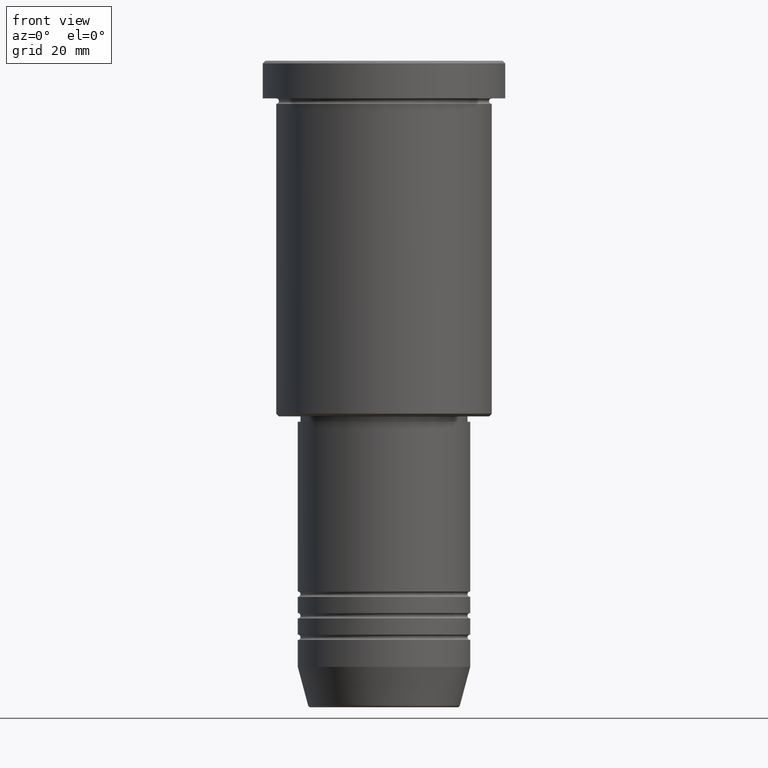
[diagram: clean part render]
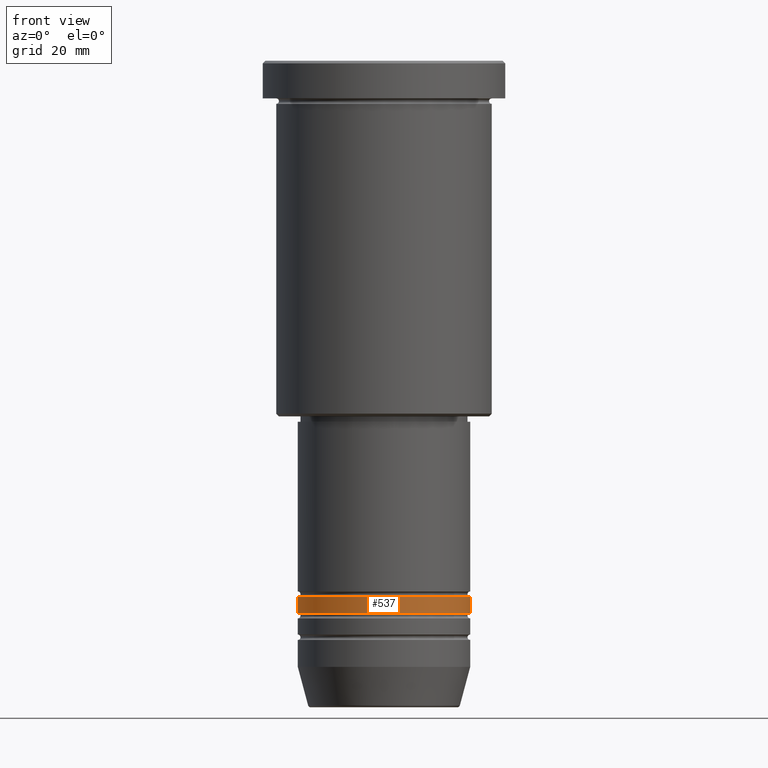
[diagram: same view with one face highlighted and labeled with its STEP entity id]
A machine part, front view. The second image highlights one B-rep face of the part: STEP entity #537.
In plain terms, the highlighted cylindrical surface (partial cylindrical patch) has radius 16 mm, axis along (-0, -0, 1).
Its self-contained STEP definition (entity closure, byte-faithful):
#2 = CARTESIAN_POINT ( 'NONE',  ( 0.000000000000000000, 0.000000000000000000, -99.49999999999997158 ) ) ;
#7 = DIRECTION ( 'NONE',  ( -0.000000000000000000, -0.000000000000000000, 1.000000000000000000 ) ) ;
#114 = ORIENTED_EDGE ( 'NONE', *, *, #595, .T. ) ;
#129 = DIRECTION ( 'NONE',  ( -0.000000000000000000, -0.000000000000000000, 1.000000000000000000 ) ) ;
#139 = CIRCLE ( 'NONE', #840, 16.00000000000000000 ) ;
#222 = CYLINDRICAL_SURFACE ( 'NONE', #387, 16.00000000000000000 ) ;
#229 = CARTESIAN_POINT ( 'NONE',  ( -16.00000000000000355, 1.959434878635765526E-15, -102.4999999999999858 ) ) ;
#333 = ORIENTED_EDGE ( 'NONE', *, *, #1014, .F. ) ;
#343 = EDGE_LOOP ( 'NONE', ( #1124, #1048, #114, #333 ) ) ;
#356 = DIRECTION ( 'NONE',  ( 1.000000000000000000, 0.000000000000000000, 0.000000000000000000 ) ) ;
#362 = DIRECTION ( 'NONE',  ( -0.000000000000000000, -0.000000000000000000, 1.000000000000000000 ) ) ;
#377 = CARTESIAN_POINT ( 'NONE',  ( 16.00000000000000000, 0.000000000000000000, -99.49999999999997158 ) ) ;
#387 = AXIS2_PLACEMENT_3D ( 'NONE', #581, #129, #862 ) ;
#512 = CARTESIAN_POINT ( 'NONE',  ( 16.00000000000000000, 0.000000000000000000, 0.000000000000000000 ) ) ;
#517 = CARTESIAN_POINT ( 'NONE',  ( 16.00000000000000355, 0.000000000000000000, -102.4999999999999858 ) ) ;
#518 = DIRECTION ( 'NONE',  ( -0.000000000000000000, -0.000000000000000000, 1.000000000000000000 ) ) ;
#534 = LINE ( 'NONE', #706, #720 ) ;
#537 = ADVANCED_FACE ( 'NONE', ( #855 ), #222, .T. ) ;
#567 = AXIS2_PLACEMENT_3D ( 'NONE', #826, #7, #356 ) ;
#581 = CARTESIAN_POINT ( 'NONE',  ( 0.000000000000000000, 0.000000000000000000, 0.000000000000000000 ) ) ;
#595 = EDGE_CURVE ( 'NONE', #930, #1007, #728, .T. ) ;
#614 = DIRECTION ( 'NONE',  ( -0.000000000000000000, -0.000000000000000000, 1.000000000000000000 ) ) ;
#706 = CARTESIAN_POINT ( 'NONE',  ( -16.00000000000000000, 1.959434878635765131E-15, 0.000000000000000000 ) ) ;
#720 = VECTOR ( 'NONE', #614, 1000.000000000000000 ) ;
#728 = LINE ( 'NONE', #512, #762 ) ;
#733 = DIRECTION ( 'NONE',  ( 1.000000000000000000, 0.000000000000000000, 0.000000000000000000 ) ) ;
#762 = VECTOR ( 'NONE', #518, 1000.000000000000000 ) ;
#777 = CIRCLE ( 'NONE', #567, 16.00000000000000355 ) ;
#820 = EDGE_CURVE ( 'NONE', #1176, #970, #534, .T. ) ;
#826 = CARTESIAN_POINT ( 'NONE',  ( 0.000000000000000000, 0.000000000000000000, -102.4999999999999858 ) ) ;
#840 = AXIS2_PLACEMENT_3D ( 'NONE', #2, #362, #733 ) ;
#855 = FACE_OUTER_BOUND ( 'NONE', #343, .T. ) ;
#862 = DIRECTION ( 'NONE',  ( 1.000000000000000000, 0.000000000000000000, 0.000000000000000000 ) ) ;
#927 = CARTESIAN_POINT ( 'NONE',  ( -16.00000000000000000, 1.959434878635765131E-15, -99.49999999999997158 ) ) ;
#930 = VERTEX_POINT ( 'NONE', #517 ) ;
#970 = VERTEX_POINT ( 'NONE', #927 ) ;
#1007 = VERTEX_POINT ( 'NONE', #377 ) ;
#1011 = EDGE_CURVE ( 'NONE', #1176, #930, #777, .T. ) ;
#1014 = EDGE_CURVE ( 'NONE', #970, #1007, #139, .T. ) ;
#1048 = ORIENTED_EDGE ( 'NONE', *, *, #1011, .T. ) ;
#1124 = ORIENTED_EDGE ( 'NONE', *, *, #820, .F. ) ;
#1176 = VERTEX_POINT ( 'NONE', #229 ) ;